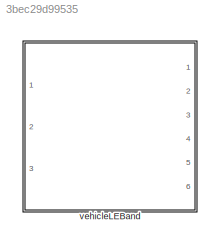
MODEL slx_3bec29d99535
KIND library
CONFIG AbsTol = auto
CONFIG EnableMultiTasking = off
CONFIG FixedStep = auto
CONFIG MaxStep = auto
CONFIG MinStep = auto
CONFIG RelTol = 1e-3
CONFIG SampleTimeConstraint = Unconstrained
CONFIG SolverName = VariableStepAuto
CONFIG StartTime = 0.0
CONFIG StopTime = 10.0
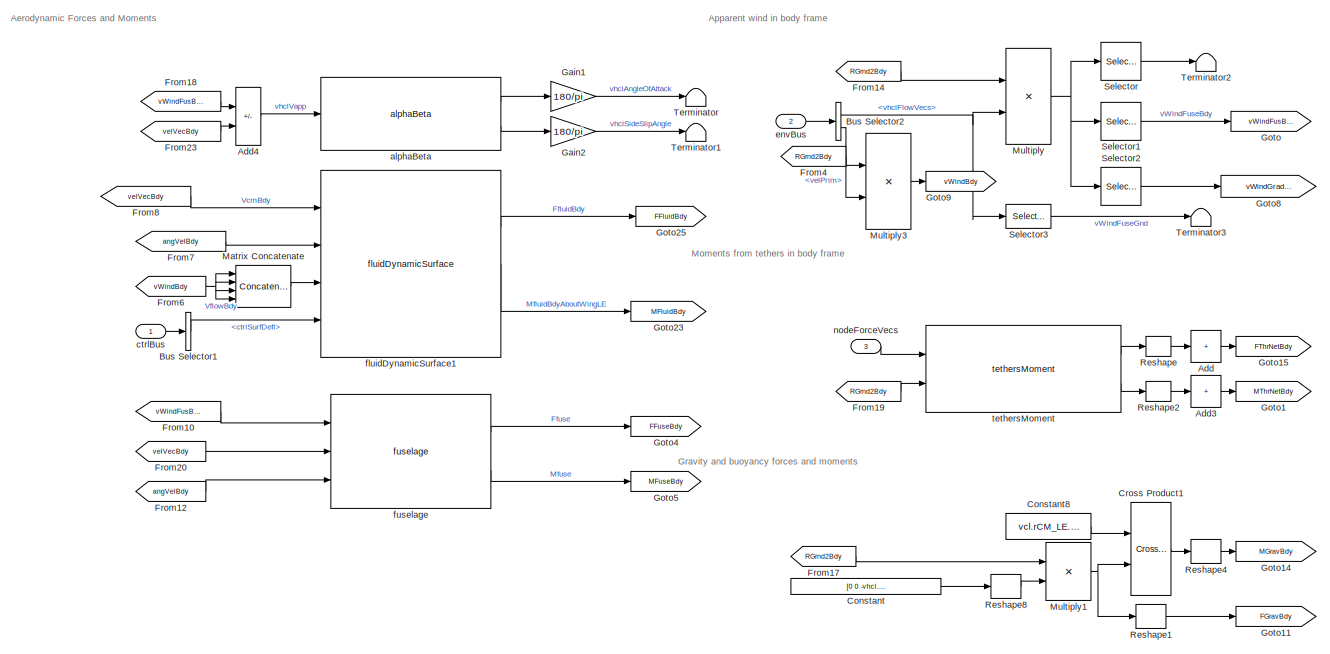
[diagram: vehicleLEBand - part 1/2, full width, top band]
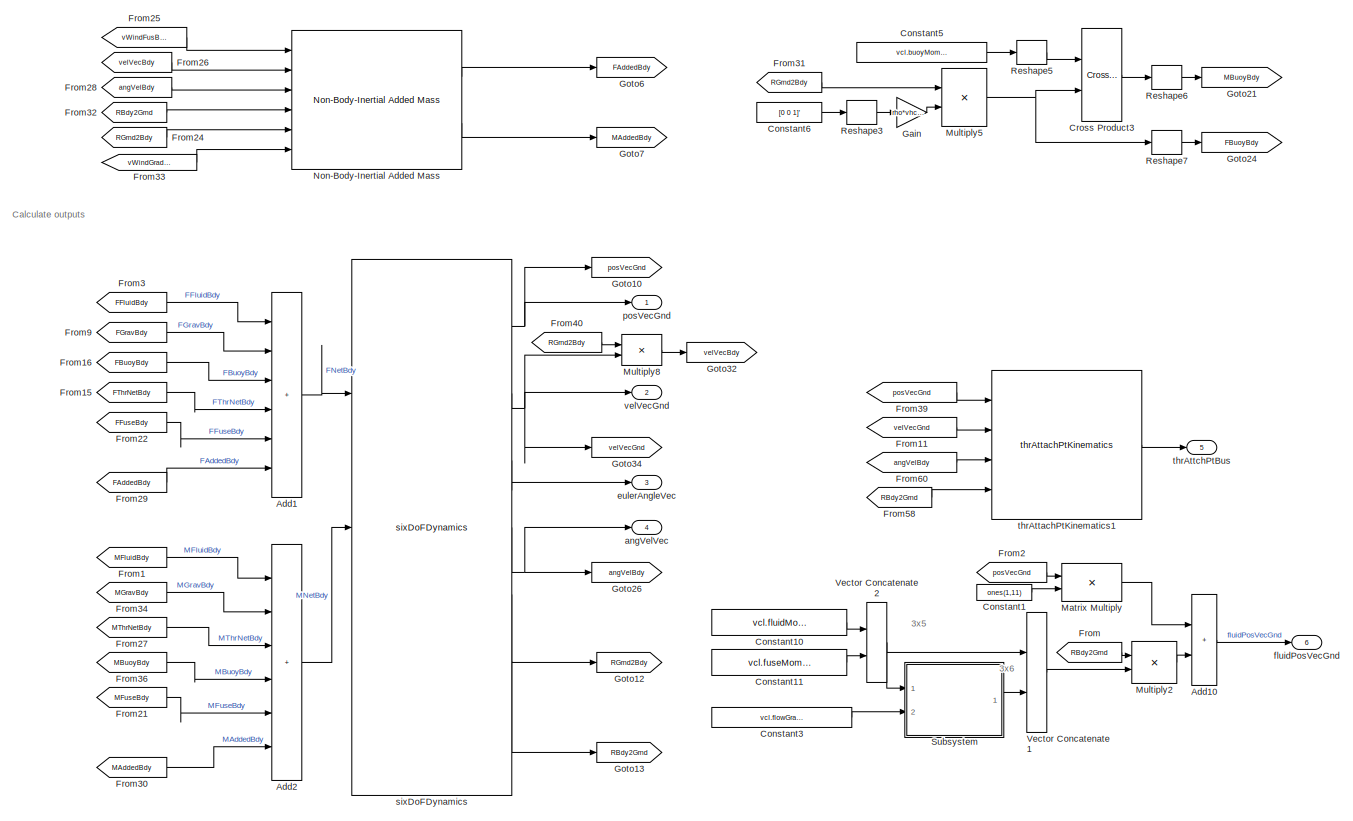
[diagram: vehicleLEBand - part 2/2, full width, bottom band]
BLOCK [SubSystem] vehicleLEBand
  Ports = [3, 6]
  RequestExecContextInheritance = off
  VariantControl = strcmpi(VEHICLE,'vehicleLE')
BLOCK [Sum] vehicleLEBand/Add
  CollapseDim = 2
  CollapseMode = Specified dimension
  IconShape = rectangular
  Inputs = +
  Ports = [1, 1]
BLOCK [Sum] vehicleLEBand/Add1
  IconShape = rectangular
  Inputs = ++++++
  Ports = [6, 1]
BLOCK [Sum] vehicleLEBand/Add10
  IconShape = rectangular
  Ports = [2, 1]
BLOCK [Sum] vehicleLEBand/Add2
  IconShape = rectangular
  Inputs = ++++++
  Ports = [6, 1]
BLOCK [Sum] vehicleLEBand/Add3
  CollapseDim = 2
  CollapseMode = Specified dimension
  IconShape = rectangular
  Inputs = +
  Ports = [1, 1]
BLOCK [Sum] vehicleLEBand/Add4
  IconShape = rectangular
  Inputs = +-
  Ports = [2, 1]
BLOCK [BusSelector] vehicleLEBand/Bus Selector1
  OutputSignals = ctrlSurfDefl
  Ports = [1, 1]
BLOCK [BusSelector] vehicleLEBand/Bus Selector2
  OutputSignals = vhclFlowVecs,velPrim
  Ports = [1, 2]
BLOCK [Constant] vehicleLEBand/Constant
  Value = [0 0 -vhcl.mass.Value*grav]
BLOCK [Constant] vehicleLEBand/Constant1
  Value = ones(1,11)
  VectorParams1D = off
BLOCK [Constant] vehicleLEBand/Constant10
  Value = vcl.fluidMomentArms.Value
BLOCK [Constant] vehicleLEBand/Constant11
  Value = vcl.fuseMomentArm.Value
BLOCK [Constant] vehicleLEBand/Constant3
  Value = vcl.flowGradientDist.Value
BLOCK [Constant] vehicleLEBand/Constant5
  Value = vcl.buoyMomentArm.Value
BLOCK [Constant] vehicleLEBand/Constant6
  Value = [0 0 1]'
BLOCK [Constant] vehicleLEBand/Constant8
  Value = vcl.rCM_LE.Value
  VectorParams1D = off
BLOCK [Reference] vehicleLEBand/Cross Product1  REF=vrlib/Utilities/Cross Product
  Ports = [2, 1]
  SourceBlock = vrlib/Utilities/Cross Product
  SourceProductBaseCode = SL
  SourceType = Cross Product
BLOCK [Reference] vehicleLEBand/Cross Product3  REF=vrlib/Utilities/Cross Product
  Ports = [2, 1]
  SourceBlock = vrlib/Utilities/Cross Product
  SourceProductBaseCode = SL
  SourceType = Cross Product
BLOCK [From] vehicleLEBand/From
  GotoTag = RBdy2Grnd
BLOCK [From] vehicleLEBand/From1
  GotoTag = MFluidBdy
BLOCK [From] vehicleLEBand/From10
  GotoTag = vWindFusBdy
BLOCK [From] vehicleLEBand/From11
  GotoTag = velVecGnd
BLOCK [From] vehicleLEBand/From12
  GotoTag = angVelBdy
BLOCK [From] vehicleLEBand/From14
  GotoTag = RGrnd2Bdy
BLOCK [From] vehicleLEBand/From15
  GotoTag = FThrNetBdy
BLOCK [From] vehicleLEBand/From16
  GotoTag = FBuoyBdy
BLOCK [From] vehicleLEBand/From17
  GotoTag = RGrnd2Bdy
BLOCK [From] vehicleLEBand/From18
  GotoTag = vWindFusBdy
BLOCK [From] vehicleLEBand/From19
  GotoTag = RGrnd2Bdy
BLOCK [From] vehicleLEBand/From2
  GotoTag = posVecGnd
BLOCK [From] vehicleLEBand/From20
  GotoTag = velVecBdy
BLOCK [From] vehicleLEBand/From21
  GotoTag = MFuseBdy
BLOCK [From] vehicleLEBand/From22
  GotoTag = FFuseBdy
BLOCK [From] vehicleLEBand/From23
  GotoTag = velVecBdy
BLOCK [From] vehicleLEBand/From24
  GotoTag = RGrnd2Bdy
BLOCK [From] vehicleLEBand/From25
  GotoTag = vWindFusBdy
BLOCK [From] vehicleLEBand/From26
  GotoTag = velVecBdy
BLOCK [From] vehicleLEBand/From27
  GotoTag = MThrNetBdy
BLOCK [From] vehicleLEBand/From28
  GotoTag = angVelBdy
BLOCK [From] vehicleLEBand/From29
  GotoTag = FAddedBdy
BLOCK [From] vehicleLEBand/From3
  GotoTag = FFluidBdy
BLOCK [From] vehicleLEBand/From30
  GotoTag = MAddedBdy
BLOCK [From] vehicleLEBand/From31
  GotoTag = RGrnd2Bdy
BLOCK [From] vehicleLEBand/From32
  GotoTag = RBdy2Grnd
BLOCK [From] vehicleLEBand/From33
  GotoTag = vWindGradGrnd
BLOCK [From] vehicleLEBand/From34
  GotoTag = MGravBdy
BLOCK [From] vehicleLEBand/From36
  GotoTag = MBuoyBdy
BLOCK [From] vehicleLEBand/From39
  GotoTag = posVecGnd
BLOCK [From] vehicleLEBand/From4
  GotoTag = RGrnd2Bdy
BLOCK [From] vehicleLEBand/From40
  GotoTag = RGrnd2Bdy
BLOCK [From] vehicleLEBand/From58
  GotoTag = RBdy2Grnd
BLOCK [From] vehicleLEBand/From6
  GotoTag = vWindBdy
BLOCK [From] vehicleLEBand/From60
  GotoTag = angVelBdy
BLOCK [From] vehicleLEBand/From7
  GotoTag = angVelBdy
BLOCK [From] vehicleLEBand/From8
  GotoTag = velVecBdy
BLOCK [From] vehicleLEBand/From9
  GotoTag = FGravBdy
BLOCK [Gain] vehicleLEBand/Gain
  Gain = rho*vhcl.volume.Value*grav
BLOCK [Gain] vehicleLEBand/Gain1
  Gain = 180/pi
BLOCK [Gain] vehicleLEBand/Gain2
  Gain = 180/pi
BLOCK [Goto] vehicleLEBand/Goto
  GotoTag = vWindFusBdy
BLOCK [Goto] vehicleLEBand/Goto1
  GotoTag = MThrNetBdy
BLOCK [Goto] vehicleLEBand/Goto10
  GotoTag = posVecGnd
BLOCK [Goto] vehicleLEBand/Goto11
  GotoTag = FGravBdy
BLOCK [Goto] vehicleLEBand/Goto12
  GotoTag = RGrnd2Bdy
BLOCK [Goto] vehicleLEBand/Goto13
  GotoTag = RBdy2Grnd
BLOCK [Goto] vehicleLEBand/Goto14
  GotoTag = MGravBdy
BLOCK [Goto] vehicleLEBand/Goto15
  GotoTag = FThrNetBdy
BLOCK [Goto] vehicleLEBand/Goto21
  GotoTag = MBuoyBdy
BLOCK [Goto] vehicleLEBand/Goto23
  GotoTag = MFluidBdy
BLOCK [Goto] vehicleLEBand/Goto24
  GotoTag = FBuoyBdy
BLOCK [Goto] vehicleLEBand/Goto25
  GotoTag = FFluidBdy
BLOCK [Goto] vehicleLEBand/Goto26
  GotoTag = angVelBdy
BLOCK [Goto] vehicleLEBand/Goto32
  GotoTag = velVecBdy
BLOCK [Goto] vehicleLEBand/Goto34
  GotoTag = velVecGnd
BLOCK [Goto] vehicleLEBand/Goto4
  GotoTag = FFuseBdy
BLOCK [Goto] vehicleLEBand/Goto5
  GotoTag = MFuseBdy
BLOCK [Goto] vehicleLEBand/Goto6
  GotoTag = FAddedBdy
BLOCK [Goto] vehicleLEBand/Goto7
  GotoTag = MAddedBdy
BLOCK [Goto] vehicleLEBand/Goto8
  GotoTag = vWindGradGrnd
BLOCK [Goto] vehicleLEBand/Goto9
  GotoTag = vWindBdy
BLOCK [Concatenate] vehicleLEBand/Matrix Concatenate
  ConcatenateDimension = 2
  Mode = Multidimensional array
  NumInputs = 4
  Ports = [4, 1]
BLOCK [Product] vehicleLEBand/Matrix Multiply
  Multiplication = Matrix(*)
  Ports = [2, 1]
BLOCK [Product] vehicleLEBand/Multiply
  Multiplication = Matrix(*)
  Ports = [2, 1]
BLOCK [Product] vehicleLEBand/Multiply1
  Multiplication = Matrix(*)
  Ports = [2, 1]
BLOCK [Product] vehicleLEBand/Multiply2
  Multiplication = Matrix(*)
  Ports = [2, 1]
BLOCK [Product] vehicleLEBand/Multiply3
  Multiplication = Matrix(*)
  Ports = [2, 1]
BLOCK [Product] vehicleLEBand/Multiply5
  Multiplication = Matrix(*)
  Ports = [2, 1]
BLOCK [Product] vehicleLEBand/Multiply8
  Multiplication = Matrix(*)
  Ports = [2, 1]
BLOCK [Reference] vehicleLEBand/Non-Body-Inertial Added Mass  REF=addedMass_cl/Non-Body-Inertial Added Mass
  Ports = [6, 2]
  SourceBlock = addedMass_cl/Non-Body-Inertial Added Mass
BLOCK [Reshape] vehicleLEBand/Reshape
  OutputDimensionality = Customize
  OutputDimensions = [3 vcl.numTethers.Value]
  Ports = [1, 1]
BLOCK [Reshape] vehicleLEBand/Reshape1
  OutputDimensionality = Column vector (2-D)
  Ports = [1, 1]
BLOCK [Reshape] vehicleLEBand/Reshape2
  OutputDimensionality = Customize
  OutputDimensions = [3 vcl.numTethers.Value]
  Ports = [1, 1]
BLOCK [Reshape] vehicleLEBand/Reshape3
  OutputDimensionality = Column vector (2-D)
  Ports = [1, 1]
BLOCK [Reshape] vehicleLEBand/Reshape4
  OutputDimensionality = Column vector (2-D)
  Ports = [1, 1]
BLOCK [Reshape] vehicleLEBand/Reshape5
  OutputDimensionality = Column vector (2-D)
  Ports = [1, 1]
BLOCK [Reshape] vehicleLEBand/Reshape6
  OutputDimensionality = Column vector (2-D)
  Ports = [1, 1]
BLOCK [Reshape] vehicleLEBand/Reshape7
  OutputDimensionality = Column vector (2-D)
  Ports = [1, 1]
BLOCK [Reshape] vehicleLEBand/Reshape8
  OutputDimensionality = Column vector (2-D)
  Ports = [1, 1]
BLOCK [Selector] vehicleLEBand/Selector
  IndexOptions = Select all,Index vector (dialog)
  Indices = [1 3],1:4
  InputPortWidth = 3
  NumberOfDimensions = 2
  OutputSizes = 1,1
  Ports = [1, 1]
BLOCK [Selector] vehicleLEBand/Selector1
  IndexOptions = Select all,Index vector (dialog)
  Indices = [1 3],5
  InputPortWidth = 3
  NumberOfDimensions = 2
  OutputSizes = 1,1
  Ports = [1, 1]
BLOCK [Selector] vehicleLEBand/Selector2
  IndexOptions = Select all,Index vector (dialog)
  Indices = [1 3],6:11
  InputPortWidth = 3
  NumberOfDimensions = 2
  OutputSizes = 1,1
  Ports = [1, 1]
BLOCK [Selector] vehicleLEBand/Selector3
  IndexOptions = Select all,Index vector (dialog)
  Indices = [1 3],5
  InputPortWidth = 3
  NumberOfDimensions = 2
  OutputSizes = 1,1
  Ports = [1, 1]
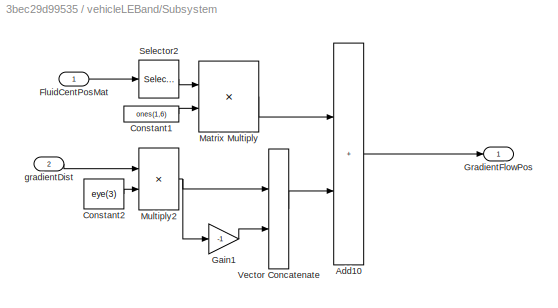
BLOCK [SubSystem] vehicleLEBand/Subsystem
  Ports = [2, 1]
  RequestExecContextInheritance = off
BLOCK [Sum] vehicleLEBand/Subsystem/Add10
  IconShape = rectangular
  Ports = [2, 1]
BLOCK [Constant] vehicleLEBand/Subsystem/Constant1
  Value = ones(1,6)
  VectorParams1D = off
BLOCK [Constant] vehicleLEBand/Subsystem/Constant2
  Value = eye(3)
BLOCK [Inport] vehicleLEBand/Subsystem/FluidCentPosMat
BLOCK [Gain] vehicleLEBand/Subsystem/Gain1
  Gain = -1
BLOCK [Outport] vehicleLEBand/Subsystem/GradientFlowPos
  VectorParamsAs1DForOutWhenUnconnected = off
BLOCK [Product] vehicleLEBand/Subsystem/Matrix Multiply
  Multiplication = Matrix(*)
  Ports = [2, 1]
BLOCK [Product] vehicleLEBand/Subsystem/Multiply2
  Ports = [2, 1]
BLOCK [Selector] vehicleLEBand/Subsystem/Selector2
  IndexOptions = Select all,Index vector (dialog)
  Indices = [1 3],5
  InputPortWidth = 3
  NumberOfDimensions = 2
  OutputSizes = 1,1
  Ports = [1, 1]
BLOCK [Concatenate] vehicleLEBand/Subsystem/Vector Concatenate
  ConcatenateDimension = 2
  Mode = Multidimensional array
  Ports = [2, 1]
BLOCK [Inport] vehicleLEBand/Subsystem/gradientDist
  Port = 2
BLOCK [Terminator] vehicleLEBand/Terminator
BLOCK [Terminator] vehicleLEBand/Terminator1
BLOCK [Terminator] vehicleLEBand/Terminator2
BLOCK [Terminator] vehicleLEBand/Terminator3
BLOCK [Concatenate] vehicleLEBand/Vector Concatenate1
  ConcatenateDimension = 2
  Mode = Multidimensional array
  Ports = [2, 1]
BLOCK [Concatenate] vehicleLEBand/Vector Concatenate2
  ConcatenateDimension = 2
  Mode = Multidimensional array
  Ports = [2, 1]
BLOCK [Reference] vehicleLEBand/alphaBeta  REF=alphaBeta_ul/alphaBeta
  Ports = [1, 2]
  SourceBlock = alphaBeta_ul/alphaBeta
  SourceType = SubSystem
BLOCK [Outport] vehicleLEBand/angVelVec
  Port = 4
  VectorParamsAs1DForOutWhenUnconnected = off
BLOCK [Inport] vehicleLEBand/ctrlBus
  OutDataTypeStr = Bus: fltCtrlBus
BLOCK [Inport] vehicleLEBand/envBus
  OutDataTypeStr = Bus: envBus
  Port = 2
BLOCK [Outport] vehicleLEBand/eulerAngleVec
  Port = 3
  VectorParamsAs1DForOutWhenUnconnected = off
BLOCK [Reference] vehicleLEBand/fluidDynamicSurface1  REF=Copy_of_fluidDynamicSurface_cl/fluidDynamicSurface
  Ports = [4, 3]
  SourceBlock = Copy_of_fluidDynamicSurface_cl/fluidDynamicSurface
BLOCK [Outport] vehicleLEBand/fluidPosVecGnd
  Port = 6
  VectorParamsAs1DForOutWhenUnconnected = off
BLOCK [Reference] vehicleLEBand/fuselage  REF=fuselage_cl/fuselage  (lib defined in slx_45091b95913d, slx_54a95fec013f)
  Ports = [3, 2]
  SourceBlock = fuselage_cl/fuselage
BLOCK [Inport] vehicleLEBand/nodeForceVecs
  Port = 3
BLOCK [Outport] vehicleLEBand/posVecGnd
  VectorParamsAs1DForOutWhenUnconnected = off
BLOCK [Reference] vehicleLEBand/sixDoFDynamics  REF=sixDoFDynamics_cl/sixDoFDynamics
  Ports = [3, 7]
  SourceBlock = sixDoFDynamics_cl/sixDoFDynamics
BLOCK [Reference] vehicleLEBand/tethersMoment  REF=tethersMoment_cl/tethersMoment
  Ports = [2, 2]
  SourceBlock = tethersMoment_cl/tethersMoment
BLOCK [Reference] vehicleLEBand/thrAttachPtKinematics1  REF=thrAttachPtKinematics_ul/thrAttachPtKinematics
  Ports = [4, 1]
  SourceBlock = thrAttachPtKinematics_ul/thrAttachPtKinematics
BLOCK [Outport] vehicleLEBand/thrAttchPtBus
  Port = 5
  VectorParamsAs1DForOutWhenUnconnected = off
BLOCK [Outport] vehicleLEBand/velVecGnd
  Port = 2
  VectorParamsAs1DForOutWhenUnconnected = off
ANNOTATION vehicleLEBand: 3x5
ANNOTATION vehicleLEBand: 3x6
ANNOTATION vehicleLEBand: Aerodynamic Forces and Moments
ANNOTATION vehicleLEBand: Apparent wind in body frame
ANNOTATION vehicleLEBand: Calculate outputs
ANNOTATION vehicleLEBand: Gravity and buoyancy forces and moments
ANNOTATION vehicleLEBand: Moments from tethers in body frame
LINE vehicleLEBand/Add10:1 -> vehicleLEBand/fluidPosVecGnd:1
LINE vehicleLEBand/Add1:1 -> vehicleLEBand/sixDoFDynamics:1
LINE vehicleLEBand/Add2:1 -> vehicleLEBand/sixDoFDynamics:2
LINE vehicleLEBand/Add3:1 -> vehicleLEBand/Goto1:1
LINE vehicleLEBand/Add4:1 -> vehicleLEBand/alphaBeta:1
LINE vehicleLEBand/Add:1 -> vehicleLEBand/Goto15:1
LINE vehicleLEBand/Bus Selector1:1 -> vehicleLEBand/fluidDynamicSurface1:4
NET vehicleLEBand/Bus Selector2:1 -> vehicleLEBand/Multiply:2, vehicleLEBand/Selector3:1
LINE vehicleLEBand/Bus Selector2:2 -> vehicleLEBand/Multiply3:2
LINE vehicleLEBand/Constant10:1 -> vehicleLEBand/Vector Concatenate2:1
LINE vehicleLEBand/Constant11:1 -> vehicleLEBand/Vector Concatenate2:2
LINE vehicleLEBand/Constant1:1 -> vehicleLEBand/Matrix Multiply:2
LINE vehicleLEBand/Constant3:1 -> vehicleLEBand/Subsystem:2
LINE vehicleLEBand/Constant5:1 -> vehicleLEBand/Reshape5:1
LINE vehicleLEBand/Constant6:1 -> vehicleLEBand/Reshape3:1
LINE vehicleLEBand/Constant8:1 -> vehicleLEBand/Cross Product1:1
LINE vehicleLEBand/Constant:1 -> vehicleLEBand/Reshape8:1
LINE vehicleLEBand/Cross Product1:1 -> vehicleLEBand/Reshape4:1
LINE vehicleLEBand/Cross Product3:1 -> vehicleLEBand/Reshape6:1
LINE vehicleLEBand/From10:1 -> vehicleLEBand/fuselage:1
LINE vehicleLEBand/From11:1 -> vehicleLEBand/thrAttachPtKinematics1:2
LINE vehicleLEBand/From12:1 -> vehicleLEBand/fuselage:3
LINE vehicleLEBand/From14:1 -> vehicleLEBand/Multiply:1
LINE vehicleLEBand/From15:1 -> vehicleLEBand/Add1:4
LINE vehicleLEBand/From16:1 -> vehicleLEBand/Add1:3
LINE vehicleLEBand/From17:1 -> vehicleLEBand/Multiply1:1
LINE vehicleLEBand/From18:1 -> vehicleLEBand/Add4:1
LINE vehicleLEBand/From19:1 -> vehicleLEBand/tethersMoment:2
LINE vehicleLEBand/From1:1 -> vehicleLEBand/Add2:1
LINE vehicleLEBand/From20:1 -> vehicleLEBand/fuselage:2
LINE vehicleLEBand/From21:1 -> vehicleLEBand/Add2:5
LINE vehicleLEBand/From22:1 -> vehicleLEBand/Add1:5
LINE vehicleLEBand/From23:1 -> vehicleLEBand/Add4:2
LINE vehicleLEBand/From24:1 -> vehicleLEBand/Non-Body-Inertial Added Mass:5
LINE vehicleLEBand/From25:1 -> vehicleLEBand/Non-Body-Inertial Added Mass:1
LINE vehicleLEBand/From26:1 -> vehicleLEBand/Non-Body-Inertial Added Mass:2
LINE vehicleLEBand/From27:1 -> vehicleLEBand/Add2:3
LINE vehicleLEBand/From28:1 -> vehicleLEBand/Non-Body-Inertial Added Mass:3
LINE vehicleLEBand/From29:1 -> vehicleLEBand/Add1:6
LINE vehicleLEBand/From2:1 -> vehicleLEBand/Matrix Multiply:1
LINE vehicleLEBand/From30:1 -> vehicleLEBand/Add2:6
LINE vehicleLEBand/From31:1 -> vehicleLEBand/Multiply5:1
LINE vehicleLEBand/From32:1 -> vehicleLEBand/Non-Body-Inertial Added Mass:4
LINE vehicleLEBand/From33:1 -> vehicleLEBand/Non-Body-Inertial Added Mass:6
LINE vehicleLEBand/From34:1 -> vehicleLEBand/Add2:2
LINE vehicleLEBand/From36:1 -> vehicleLEBand/Add2:4
LINE vehicleLEBand/From39:1 -> vehicleLEBand/thrAttachPtKinematics1:1
LINE vehicleLEBand/From3:1 -> vehicleLEBand/Add1:1
LINE vehicleLEBand/From40:1 -> vehicleLEBand/Multiply8:1
LINE vehicleLEBand/From4:1 -> vehicleLEBand/Multiply3:1
LINE vehicleLEBand/From58:1 -> vehicleLEBand/thrAttachPtKinematics1:4
LINE vehicleLEBand/From60:1 -> vehicleLEBand/thrAttachPtKinematics1:3
NET vehicleLEBand/From6:1 -> vehicleLEBand/Matrix Concatenate:1, vehicleLEBand/Matrix Concatenate:2, vehicleLEBand/Matrix Concatenate:3, vehicleLEBand/Matrix Concatenate:4
LINE vehicleLEBand/From7:1 -> vehicleLEBand/fluidDynamicSurface1:2
LINE vehicleLEBand/From8:1 -> vehicleLEBand/fluidDynamicSurface1:1
LINE vehicleLEBand/From9:1 -> vehicleLEBand/Add1:2
LINE vehicleLEBand/From:1 -> vehicleLEBand/Multiply2:1
LINE vehicleLEBand/Gain1:1 -> vehicleLEBand/Terminator:1
LINE vehicleLEBand/Gain2:1 -> vehicleLEBand/Terminator1:1
LINE vehicleLEBand/Gain:1 -> vehicleLEBand/Multiply5:2
LINE vehicleLEBand/Matrix Concatenate:1 -> vehicleLEBand/fluidDynamicSurface1:3
LINE vehicleLEBand/Matrix Multiply:1 -> vehicleLEBand/Add10:1
NET vehicleLEBand/Multiply1:1 -> vehicleLEBand/Cross Product1:2, vehicleLEBand/Reshape1:1
LINE vehicleLEBand/Multiply2:1 -> vehicleLEBand/Add10:2
LINE vehicleLEBand/Multiply3:1 -> vehicleLEBand/Goto9:1
NET vehicleLEBand/Multiply5:1 -> vehicleLEBand/Cross Product3:2, vehicleLEBand/Reshape7:1
LINE vehicleLEBand/Multiply8:1 -> vehicleLEBand/Goto32:1
NET vehicleLEBand/Multiply:1 -> vehicleLEBand/Selector1:1, vehicleLEBand/Selector2:1, vehicleLEBand/Selector:1
LINE vehicleLEBand/Non-Body-Inertial Added Mass:1 -> vehicleLEBand/Goto6:1
LINE vehicleLEBand/Non-Body-Inertial Added Mass:2 -> vehicleLEBand/Goto7:1
LINE vehicleLEBand/Reshape1:1 -> vehicleLEBand/Goto11:1
LINE vehicleLEBand/Reshape2:1 -> vehicleLEBand/Add3:1
LINE vehicleLEBand/Reshape3:1 -> vehicleLEBand/Gain:1
LINE vehicleLEBand/Reshape4:1 -> vehicleLEBand/Goto14:1
LINE vehicleLEBand/Reshape5:1 -> vehicleLEBand/Cross Product3:1
LINE vehicleLEBand/Reshape6:1 -> vehicleLEBand/Goto21:1
LINE vehicleLEBand/Reshape7:1 -> vehicleLEBand/Goto24:1
LINE vehicleLEBand/Reshape8:1 -> vehicleLEBand/Multiply1:2
LINE vehicleLEBand/Reshape:1 -> vehicleLEBand/Add:1
LINE vehicleLEBand/Selector1:1 -> vehicleLEBand/Goto:1
LINE vehicleLEBand/Selector2:1 -> vehicleLEBand/Goto8:1
LINE vehicleLEBand/Selector3:1 -> vehicleLEBand/Terminator3:1
LINE vehicleLEBand/Selector:1 -> vehicleLEBand/Terminator2:1
LINE vehicleLEBand/Subsystem/Add10:1 -> vehicleLEBand/Subsystem/GradientFlowPos:1
LINE vehicleLEBand/Subsystem/Constant1:1 -> vehicleLEBand/Subsystem/Matrix Multiply:2
LINE vehicleLEBand/Subsystem/Constant2:1 -> vehicleLEBand/Subsystem/Multiply2:2
LINE vehicleLEBand/Subsystem/FluidCentPosMat:1 -> vehicleLEBand/Subsystem/Selector2:1
LINE vehicleLEBand/Subsystem/Gain1:1 -> vehicleLEBand/Subsystem/Vector Concatenate:2
LINE vehicleLEBand/Subsystem/Matrix Multiply:1 -> vehicleLEBand/Subsystem/Add10:1
NET vehicleLEBand/Subsystem/Multiply2:1 -> vehicleLEBand/Subsystem/Gain1:1, vehicleLEBand/Subsystem/Vector Concatenate:1
LINE vehicleLEBand/Subsystem/Selector2:1 -> vehicleLEBand/Subsystem/Matrix Multiply:1
LINE vehicleLEBand/Subsystem/Vector Concatenate:1 -> vehicleLEBand/Subsystem/Add10:2
LINE vehicleLEBand/Subsystem/gradientDist:1 -> vehicleLEBand/Subsystem/Multiply2:1
LINE vehicleLEBand/Subsystem:1 -> vehicleLEBand/Vector Concatenate1:2
LINE vehicleLEBand/Vector Concatenate1:1 -> vehicleLEBand/Multiply2:2
NET vehicleLEBand/Vector Concatenate2:1 -> vehicleLEBand/Subsystem:1, vehicleLEBand/Vector Concatenate1:1
LINE vehicleLEBand/alphaBeta:1 -> vehicleLEBand/Gain1:1
LINE vehicleLEBand/alphaBeta:2 -> vehicleLEBand/Gain2:1
LINE vehicleLEBand/ctrlBus:1 -> vehicleLEBand/Bus Selector1:1
LINE vehicleLEBand/envBus:1 -> vehicleLEBand/Bus Selector2:1
LINE vehicleLEBand/fluidDynamicSurface1:1 -> vehicleLEBand/Goto25:1
LINE vehicleLEBand/fluidDynamicSurface1:2 -> vehicleLEBand/Goto23:1
LINE vehicleLEBand/fuselage:1 -> vehicleLEBand/Goto4:1
LINE vehicleLEBand/fuselage:2 -> vehicleLEBand/Goto5:1
LINE vehicleLEBand/nodeForceVecs:1 -> vehicleLEBand/tethersMoment:1
NET vehicleLEBand/sixDoFDynamics:1 -> vehicleLEBand/Goto10:1, vehicleLEBand/posVecGnd:1
NET vehicleLEBand/sixDoFDynamics:2 -> vehicleLEBand/Goto34:1, vehicleLEBand/Multiply8:2, vehicleLEBand/velVecGnd:1
LINE vehicleLEBand/sixDoFDynamics:3 -> vehicleLEBand/eulerAngleVec:1
NET vehicleLEBand/sixDoFDynamics:4 -> vehicleLEBand/Goto26:1, vehicleLEBand/angVelVec:1
LINE vehicleLEBand/sixDoFDynamics:5 -> vehicleLEBand/Goto12:1
LINE vehicleLEBand/sixDoFDynamics:6 -> vehicleLEBand/Goto13:1
LINE vehicleLEBand/tethersMoment:1 -> vehicleLEBand/Reshape:1
LINE vehicleLEBand/tethersMoment:2 -> vehicleLEBand/Reshape2:1
LINE vehicleLEBand/thrAttachPtKinematics1:1 -> vehicleLEBand/thrAttchPtBus:1
note: NET lines group one-source signal fan-out (src -> all destinations, sorted); 1:1 wires keep LINE
